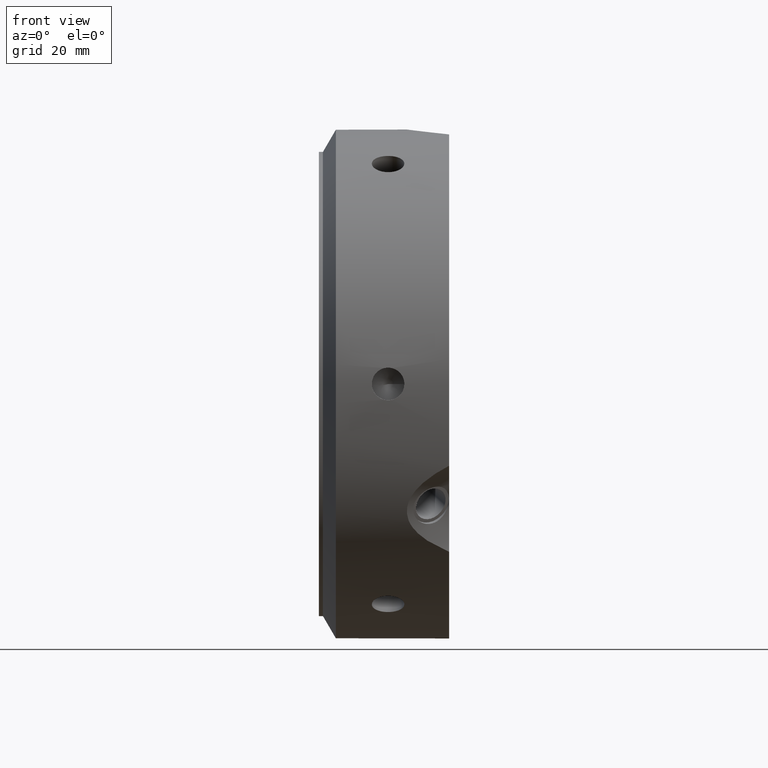
[diagram: clean part render]
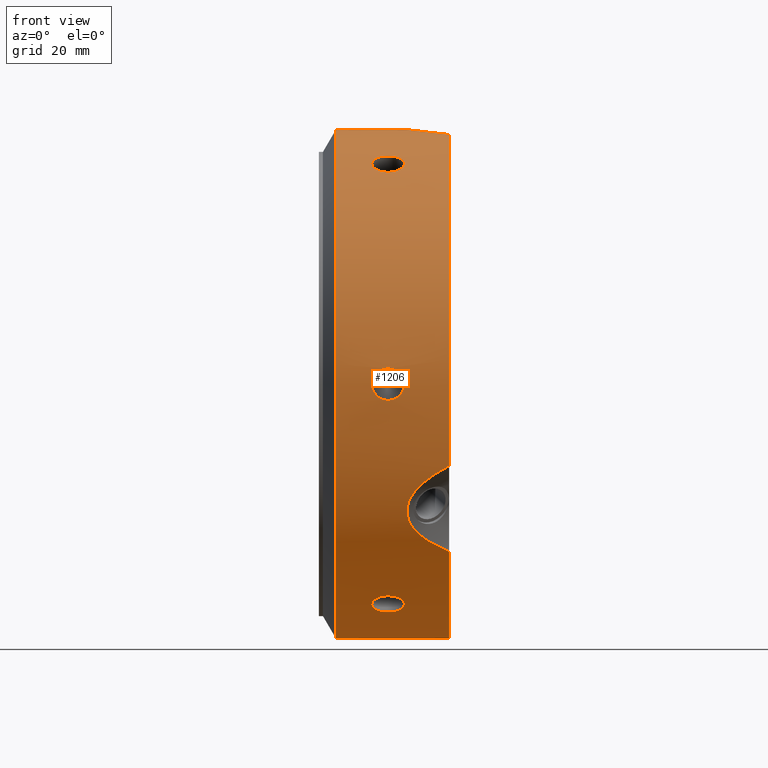
[diagram: same view with one face highlighted and labeled with its STEP entity id]
A machine part, front view. The second image highlights one B-rep face of the part: STEP entity #1206.
In plain terms, the highlighted cylindrical surface (bore or boss wall) has radius 62.5 mm, axis along (1, 0, 0).
Its self-contained STEP definition (entity closure, byte-faithful):
#90=CARTESIAN_POINT('',(12.999999999999975,31.250000000000053,54.126587736527384));
#91=VERTEX_POINT('',#90);
#92=CARTESIAN_POINT('',(20.999999999999979,31.250000000000057,54.126587736527384));
#93=VERTEX_POINT('',#92);
#94=CARTESIAN_POINT('',(12.999999999999975,31.250000000000057,54.126587736527384));
#95=CARTESIAN_POINT('',(12.999999999999975,31.685087773698246,53.875389693261617));
#96=CARTESIAN_POINT('',(13.100432073381826,32.145755520425617,53.601710224485799));
#97=CARTESIAN_POINT('',(13.5086895282219,32.987130454037285,53.088060440923421));
#98=CARTESIAN_POINT('',(13.8165073155632,33.368020003460273,52.848382863856486));
#99=CARTESIAN_POINT('',(14.526638636587311,33.966926850569322,52.465457310002023));
#100=CARTESIAN_POINT('',(14.97633736064137,34.22493602999338,52.29670705123069));
#101=CARTESIAN_POINT('',(15.961814025789714,34.566406575773698,52.071636724532915));
#102=CARTESIAN_POINT('',(16.497603628156,34.650035944575492,52.015622740092482));
#103=CARTESIAN_POINT('',(17.502396371843957,34.650035944575492,52.015622740092482));
#104=CARTESIAN_POINT('',(18.03818597421024,34.566406575773698,52.071636724532922));
#105=CARTESIAN_POINT('',(19.023662639358584,34.22493602999338,52.296707051230698));
#106=CARTESIAN_POINT('',(19.473361363412639,33.966926850569322,52.465457310002009));
#107=CARTESIAN_POINT('',(20.183492684436754,33.368020003460273,52.848382863856472));
#108=CARTESIAN_POINT('',(20.491310471778057,32.987130454037285,53.088060440923421));
#109=CARTESIAN_POINT('',(20.899567926618129,32.14575552042561,53.601710224485799));
#110=CARTESIAN_POINT('',(20.999999999999975,31.685087773698246,53.875389693261617));
#111=CARTESIAN_POINT('',(20.999999999999975,31.250000000000057,54.126587736527384));
#112=B_SPLINE_CURVE_WITH_KNOTS('',3,(#94,#95,#96,#97,#98,#99,#100,#101,#102,#103,#104,#105,#106,#107,#108,#109,#110,#111),.UNSPECIFIED.,.F.,.U.,(4,2,2,2,2,2,2,2,4),(0.602875475025307,0.753594300984766,0.904313126944226,1.055032038497419,1.205750950050613,1.356469861603806,1.507188773156999,1.657907599116459,1.808626425075919),.UNSPECIFIED.);
#113=EDGE_CURVE('',#91,#93,#112,.T.);
#115=CARTESIAN_POINT('',(20.999999999999979,31.250000000000053,54.126587736527377));
#116=CARTESIAN_POINT('',(20.999999999999979,30.814912226301864,54.377785779793143));
#117=CARTESIAN_POINT('',(20.899567926618129,30.347564980484098,54.639896016775268));
#118=CARTESIAN_POINT('',(20.491310471778061,29.482043752464868,55.111723191609236));
#119=CARTESIAN_POINT('',(20.183492684436757,29.084032107295901,55.321744428912076));
#120=CARTESIAN_POINT('',(19.473361363412643,28.452955426345177,55.648950196081728));
#121=CARTESIAN_POINT('',(19.023662639358591,28.177808825641989,55.788017570486886));
#122=CARTESIAN_POINT('',(18.038185974210244,27.812156932193503,55.971204574427901));
#123=CARTESIAN_POINT('',(17.502396371843957,27.721832714299985,56.015622740092482));
#124=CARTESIAN_POINT('',(16.999999999999979,27.721832714299985,56.015622740092482));
#125=CARTESIAN_POINT('',(16.497603628156,27.721832714299985,56.015622740092482));
#126=CARTESIAN_POINT('',(15.961814025789716,27.812156932193499,55.971204574427901));
#127=CARTESIAN_POINT('',(14.976337360641367,28.177808825641986,55.788017570486886));
#128=CARTESIAN_POINT('',(14.526638636587311,28.452955426345177,55.648950196081728));
#129=CARTESIAN_POINT('',(13.8165073155632,29.08403210729589,55.321744428912076));
#130=CARTESIAN_POINT('',(13.508689528221897,29.482043752464865,55.111723191609244));
#131=CARTESIAN_POINT('',(13.100432073381823,30.347564980484091,54.639896016775282));
#132=CARTESIAN_POINT('',(12.999999999999975,30.814912226301871,54.377785779793157));
#133=CARTESIAN_POINT('',(12.999999999999975,31.250000000000057,54.126587736527384));
#134=B_SPLINE_CURVE_WITH_KNOTS('',3,(#115,#116,#117,#118,#119,#120,#121,#122,#123,#124,#125,#126,#127,#128,#129,#130,#131,#132,#133),.UNSPECIFIED.,.F.,.U.,(4,2,2,2,3,2,2,2,4),(1.808626425075919,1.959345251035379,2.110064076994838,2.260782988548032,2.411501900101225,2.562220811654419,2.712939723207613,2.863658549167072,3.014377375126532),.UNSPECIFIED.);
#135=EDGE_CURVE('',#93,#91,#134,.T.);
#202=CARTESIAN_POINT('',(12.999999999999975,62.5,-4.163336E-014));
#203=VERTEX_POINT('',#202);
#204=CARTESIAN_POINT('',(20.999999999999979,62.5,-4.440892E-014));
#205=VERTEX_POINT('',#204);
#206=CARTESIAN_POINT('',(12.999999999999975,62.5,-4.579670E-014));
#207=CARTESIAN_POINT('',(12.999999999999975,62.5,-0.502396086531579));
#208=CARTESIAN_POINT('',(13.100432073381823,62.49332050090959,-1.03818579228952));
#209=CARTESIAN_POINT('',(13.508689528221893,62.469174206502032,-2.023662750685858));
#210=CARTESIAN_POINT('',(13.8165073155632,62.452052110756057,-2.473361565055648));
#211=CARTESIAN_POINT('',(14.526638636587311,62.419882276914379,-3.183492886079761));
#212=CARTESIAN_POINT('',(14.976337360641365,62.402744855635248,-3.491310519256232));
#213=CARTESIAN_POINT('',(15.961814025789709,62.37856350796708,-3.899567849895008));
#214=CARTESIAN_POINT('',(16.497603628156,62.371868658875371,-4.000000000000046));
#215=CARTESIAN_POINT('',(17.502396371843957,62.371868658875371,-4.000000000000046));
#216=CARTESIAN_POINT('',(18.038185974210247,62.37856350796708,-3.899567849895008));
#217=CARTESIAN_POINT('',(19.023662639358591,62.402744855635248,-3.491310519256232));
#218=CARTESIAN_POINT('',(19.473361363412643,62.419882276914379,-3.183492886079761));
#219=CARTESIAN_POINT('',(20.183492684436754,62.452052110756057,-2.473361565055648));
#220=CARTESIAN_POINT('',(20.491310471778061,62.469174206502032,-2.023662750685858));
#221=CARTESIAN_POINT('',(20.899567926618129,62.49332050090959,-1.038185792289522));
#222=CARTESIAN_POINT('',(20.999999999999975,62.5,-0.50239608653158));
#223=CARTESIAN_POINT('',(20.999999999999975,62.5,-4.718448E-014));
#224=B_SPLINE_CURVE_WITH_KNOTS('',3,(#206,#207,#208,#209,#210,#211,#212,#213,#214,#215,#216,#217,#218,#219,#220,#221,#222,#223),.UNSPECIFIED.,.F.,.U.,(4,2,2,2,2,2,2,2,4),(0.602875475025306,0.753594300984766,0.904313126944226,1.055032038497419,1.205750950050613,1.356469861603806,1.507188773156999,1.657907599116459,1.808626425075919),.UNSPECIFIED.);
#225=EDGE_CURVE('',#203,#205,#224,.T.);
#227=CARTESIAN_POINT('',(20.999999999999975,62.5,-4.704570E-014));
#228=CARTESIAN_POINT('',(20.999999999999975,62.5,0.502396086531486));
#229=CARTESIAN_POINT('',(20.899567926618129,62.49332050090959,1.038185792289428));
#230=CARTESIAN_POINT('',(20.491310471778061,62.469174206502032,2.023662750685766));
#231=CARTESIAN_POINT('',(20.183492684436754,62.452052110756057,2.473361565055556));
#232=CARTESIAN_POINT('',(19.473361363412643,62.419882276914379,3.183492886079669));
#233=CARTESIAN_POINT('',(19.023662639358591,62.402744855635248,3.491310519256141));
#234=CARTESIAN_POINT('',(18.038185974210247,62.37856350796708,3.899567849894916));
#235=CARTESIAN_POINT('',(17.502396371843957,62.371868658875371,3.999999999999954));
#236=CARTESIAN_POINT('',(16.999999999999979,62.371868658875371,3.999999999999954));
#237=CARTESIAN_POINT('',(16.497603628156,62.371868658875371,3.999999999999954));
#238=CARTESIAN_POINT('',(15.961814025789709,62.37856350796708,3.899567849894916));
#239=CARTESIAN_POINT('',(14.976337360641365,62.402744855635248,3.491310519256141));
#240=CARTESIAN_POINT('',(14.526638636587311,62.419882276914379,3.183492886079669));
#241=CARTESIAN_POINT('',(13.8165073155632,62.452052110756057,2.473361565055557));
#242=CARTESIAN_POINT('',(13.508689528221897,62.469174206502032,2.023662750685768));
#243=CARTESIAN_POINT('',(13.100432073381825,62.49332050090959,1.03818579228943));
#244=CARTESIAN_POINT('',(12.999999999999975,62.5,0.502396086531487));
#245=CARTESIAN_POINT('',(12.999999999999975,62.5,-4.579670E-014));
#246=B_SPLINE_CURVE_WITH_KNOTS('',3,(#227,#228,#229,#230,#231,#232,#233,#234,#235,#236,#237,#238,#239,#240,#241,#242,#243,#244,#245),.UNSPECIFIED.,.F.,.U.,(4,2,2,2,3,2,2,2,4),(1.808626425075919,1.959345251035379,2.110064076994838,2.260782988548032,2.411501900101225,2.562220811654418,2.712939723207612,2.863658549167071,3.014377375126531),.UNSPECIFIED.);
#247=EDGE_CURVE('',#205,#203,#246,.T.);
#314=CARTESIAN_POINT('',(12.999999999999975,31.249999999999979,-54.126587736527426));
#315=VERTEX_POINT('',#314);
#316=CARTESIAN_POINT('',(20.999999999999979,31.249999999999979,-54.126587736527426));
#317=VERTEX_POINT('',#316);
#318=CARTESIAN_POINT('',(12.999999999999979,31.249999999999982,-54.126587736527426));
#319=CARTESIAN_POINT('',(12.999999999999979,30.814912226301789,-54.377785779793193));
#320=CARTESIAN_POINT('',(13.100432073381826,30.34756498048402,-54.639896016775317));
#321=CARTESIAN_POINT('',(13.5086895282219,29.482043752464794,-55.111723191609279));
#322=CARTESIAN_POINT('',(13.8165073155632,29.084032107295819,-55.321744428912126));
#323=CARTESIAN_POINT('',(14.526638636587313,28.452955426345106,-55.648950196081785));
#324=CARTESIAN_POINT('',(14.976337360641372,28.177808825641915,-55.788017570486929));
#325=CARTESIAN_POINT('',(15.961814025789714,27.812156932193428,-55.971204574427929));
#326=CARTESIAN_POINT('',(16.497603628156,27.721832714299921,-56.015622740092525));
#327=CARTESIAN_POINT('',(17.502396371843957,27.721832714299921,-56.015622740092525));
#328=CARTESIAN_POINT('',(18.038185974210251,27.812156932193428,-55.971204574427922));
#329=CARTESIAN_POINT('',(19.023662639358591,28.177808825641915,-55.788017570486915));
#330=CARTESIAN_POINT('',(19.473361363412643,28.452955426345113,-55.648950196081763));
#331=CARTESIAN_POINT('',(20.183492684436754,29.08403210729583,-55.321744428912119));
#332=CARTESIAN_POINT('',(20.491310471778061,29.482043752464797,-55.111723191609279));
#333=CARTESIAN_POINT('',(20.899567926618129,30.347564980484023,-54.639896016775317));
#334=CARTESIAN_POINT('',(20.999999999999975,30.814912226301789,-54.377785779793186));
#335=CARTESIAN_POINT('',(20.999999999999975,31.249999999999982,-54.126587736527426));
#336=B_SPLINE_CURVE_WITH_KNOTS('',3,(#318,#319,#320,#321,#322,#323,#324,#325,#326,#327,#328,#329,#330,#331,#332,#333,#334,#335),.UNSPECIFIED.,.F.,.U.,(4,2,2,2,2,2,2,2,4),(0.602875475025307,0.753594300984767,0.904313126944227,1.05503203849742,1.205750950050613,1.356469861603806,1.507188773157,1.657907599116459,1.808626425075918),.UNSPECIFIED.);
#337=EDGE_CURVE('',#315,#317,#336,.T.);
#339=CARTESIAN_POINT('',(20.999999999999979,31.249999999999982,-54.126587736527426));
#340=CARTESIAN_POINT('',(20.999999999999979,31.685087773698175,-53.875389693261653));
#341=CARTESIAN_POINT('',(20.899567926618129,32.145755520425539,-53.601710224485835));
#342=CARTESIAN_POINT('',(20.491310471778061,32.987130454037207,-53.088060440923456));
#343=CARTESIAN_POINT('',(20.183492684436757,33.368020003460202,-52.848382863856514));
#344=CARTESIAN_POINT('',(19.473361363412643,33.966926850569259,-52.465457310002051));
#345=CARTESIAN_POINT('',(19.023662639358584,34.224936029993309,-52.296707051230733));
#346=CARTESIAN_POINT('',(18.03818597421024,34.566406575773627,-52.071636724532965));
#347=CARTESIAN_POINT('',(17.502396371843957,34.650035944575428,-52.015622740092525));
#348=CARTESIAN_POINT('',(16.999999999999979,34.650035944575428,-52.015622740092525));
#349=CARTESIAN_POINT('',(16.497603628156,34.650035944575428,-52.015622740092525));
#350=CARTESIAN_POINT('',(15.961814025789714,34.566406575773627,-52.071636724532965));
#351=CARTESIAN_POINT('',(14.97633736064137,34.224936029993309,-52.296707051230733));
#352=CARTESIAN_POINT('',(14.526638636587311,33.966926850569259,-52.465457310002051));
#353=CARTESIAN_POINT('',(13.816507315563198,33.368020003460202,-52.848382863856514));
#354=CARTESIAN_POINT('',(13.508689528221893,32.987130454037207,-53.088060440923456));
#355=CARTESIAN_POINT('',(13.100432073381823,32.145755520425531,-53.601710224485835));
#356=CARTESIAN_POINT('',(12.999999999999979,31.685087773698179,-53.875389693261646));
#357=CARTESIAN_POINT('',(12.999999999999979,31.249999999999986,-54.126587736527412));
#358=B_SPLINE_CURVE_WITH_KNOTS('',3,(#339,#340,#341,#342,#343,#344,#345,#346,#347,#348,#349,#350,#351,#352,#353,#354,#355,#356,#357),.UNSPECIFIED.,.F.,.U.,(4,2,2,2,3,2,2,2,4),(1.808626425075918,1.959345251035379,2.110064076994839,2.260782988548032,2.411501900101225,2.562220811654419,2.712939723207612,2.863658549167072,3.014377375126533),.UNSPECIFIED.);
#359=EDGE_CURVE('',#317,#315,#358,.T.);
#426=CARTESIAN_POINT('',(12.999999999999975,-31.250000000000021,-54.126587736527405));
#427=VERTEX_POINT('',#426);
#428=CARTESIAN_POINT('',(20.999999999999979,-31.250000000000028,-54.126587736527405));
#429=VERTEX_POINT('',#428);
#430=CARTESIAN_POINT('',(12.999999999999979,-31.250000000000028,-54.126587736527405));
#431=CARTESIAN_POINT('',(12.999999999999979,-31.685087773698221,-53.875389693261639));
#432=CARTESIAN_POINT('',(13.100432073381825,-32.145755520425581,-53.601710224485814));
#433=CARTESIAN_POINT('',(13.508689528221893,-32.987130454037242,-53.088060440923435));
#434=CARTESIAN_POINT('',(13.8165073155632,-33.368020003460238,-52.8483828638565));
#435=CARTESIAN_POINT('',(14.526638636587313,-33.966926850569287,-52.465457310002037));
#436=CARTESIAN_POINT('',(14.976337360641367,-34.224936029993337,-52.296707051230712));
#437=CARTESIAN_POINT('',(15.961814025789714,-34.566406575773655,-52.071636724532944));
#438=CARTESIAN_POINT('',(16.497603628156,-34.650035944575464,-52.015622740092496));
#439=CARTESIAN_POINT('',(17.502396371843954,-34.650035944575464,-52.015622740092496));
#440=CARTESIAN_POINT('',(18.03818597421024,-34.566406575773655,-52.071636724532944));
#441=CARTESIAN_POINT('',(19.023662639358584,-34.224936029993337,-52.296707051230712));
#442=CARTESIAN_POINT('',(19.473361363412639,-33.966926850569294,-52.465457310002037));
#443=CARTESIAN_POINT('',(20.18349268443675,-33.368020003460245,-52.8483828638565));
#444=CARTESIAN_POINT('',(20.491310471778057,-32.987130454037242,-53.088060440923435));
#445=CARTESIAN_POINT('',(20.899567926618129,-32.145755520425574,-53.601710224485821));
#446=CARTESIAN_POINT('',(20.999999999999975,-31.685087773698214,-53.875389693261639));
#447=CARTESIAN_POINT('',(20.999999999999975,-31.250000000000021,-54.126587736527405));
#448=B_SPLINE_CURVE_WITH_KNOTS('',3,(#430,#431,#432,#433,#434,#435,#436,#437,#438,#439,#440,#441,#442,#443,#444,#445,#446,#447),.UNSPECIFIED.,.F.,.U.,(4,2,2,2,2,2,2,2,4),(0.602875475025306,0.753594300984766,0.904313126944226,1.055032038497419,1.205750950050613,1.356469861603806,1.507188773156999,1.657907599116459,1.808626425075919),.UNSPECIFIED.);
#449=EDGE_CURVE('',#427,#429,#448,.T.);
#451=CARTESIAN_POINT('',(20.999999999999979,-31.250000000000021,-54.126587736527405));
#452=CARTESIAN_POINT('',(20.999999999999979,-30.814912226301828,-54.377785779793172));
#453=CARTESIAN_POINT('',(20.899567926618133,-30.347564980484059,-54.639896016775289));
#454=CARTESIAN_POINT('',(20.491310471778064,-29.482043752464833,-55.111723191609258));
#455=CARTESIAN_POINT('',(20.183492684436757,-29.084032107295865,-55.321744428912112));
#456=CARTESIAN_POINT('',(19.473361363412643,-28.452955426345152,-55.648950196081742));
#457=CARTESIAN_POINT('',(19.023662639358591,-28.17780882564195,-55.788017570486907));
#458=CARTESIAN_POINT('',(18.038185974210244,-27.812156932193464,-55.971204574427915));
#459=CARTESIAN_POINT('',(17.502396371843957,-27.72183271429995,-56.015622740092503));
#460=CARTESIAN_POINT('',(16.999999999999979,-27.721832714299953,-56.015622740092503));
#461=CARTESIAN_POINT('',(16.497603628156,-27.721832714299953,-56.015622740092503));
#462=CARTESIAN_POINT('',(15.961814025789709,-27.812156932193464,-55.971204574427915));
#463=CARTESIAN_POINT('',(14.976337360641365,-28.17780882564195,-55.788017570486907));
#464=CARTESIAN_POINT('',(14.526638636587311,-28.452955426345152,-55.648950196081756));
#465=CARTESIAN_POINT('',(13.8165073155632,-29.084032107295865,-55.321744428912112));
#466=CARTESIAN_POINT('',(13.508689528221893,-29.482043752464833,-55.111723191609272));
#467=CARTESIAN_POINT('',(13.100432073381823,-30.347564980484062,-54.63989601677531));
#468=CARTESIAN_POINT('',(12.999999999999975,-30.814912226301828,-54.377785779793172));
#469=CARTESIAN_POINT('',(12.999999999999975,-31.250000000000021,-54.126587736527405));
#470=B_SPLINE_CURVE_WITH_KNOTS('',3,(#451,#452,#453,#454,#455,#456,#457,#458,#459,#460,#461,#462,#463,#464,#465,#466,#467,#468,#469),.UNSPECIFIED.,.F.,.U.,(4,2,2,2,3,2,2,2,4),(1.808626425075919,1.959345251035379,2.110064076994838,2.260782988548032,2.411501900101225,2.562220811654419,2.712939723207613,2.863658549167072,3.014377375126532),.UNSPECIFIED.);
#471=EDGE_CURVE('',#429,#427,#470,.T.);
#538=CARTESIAN_POINT('',(12.999999999999975,-62.5,1.734723E-014));
#539=VERTEX_POINT('',#538);
#540=CARTESIAN_POINT('',(20.999999999999979,-62.5,2.220446E-014));
#541=VERTEX_POINT('',#540);
#542=CARTESIAN_POINT('',(12.999999999999975,-62.5,1.804112E-014));
#543=CARTESIAN_POINT('',(12.999999999999975,-62.5,0.502396086531551));
#544=CARTESIAN_POINT('',(13.100432073381823,-62.49332050090959,1.038185792289492));
#545=CARTESIAN_POINT('',(13.508689528221893,-62.469174206502032,2.02366275068583));
#546=CARTESIAN_POINT('',(13.8165073155632,-62.452052110756057,2.47336156505562));
#547=CARTESIAN_POINT('',(14.526638636587311,-62.419882276914379,3.183492886079733));
#548=CARTESIAN_POINT('',(14.97633736064137,-62.402744855635248,3.491310519256206));
#549=CARTESIAN_POINT('',(15.961814025789714,-62.37856350796708,3.899567849894981));
#550=CARTESIAN_POINT('',(16.497603628156,-62.371868658875371,4.000000000000019));
#551=CARTESIAN_POINT('',(17.502396371843957,-62.371868658875371,4.000000000000019));
#552=CARTESIAN_POINT('',(18.038185974210247,-62.37856350796708,3.89956784989498));
#553=CARTESIAN_POINT('',(19.023662639358591,-62.402744855635248,3.491310519256205));
#554=CARTESIAN_POINT('',(19.473361363412643,-62.419882276914379,3.183492886079732));
#555=CARTESIAN_POINT('',(20.183492684436754,-62.452052110756057,2.47336156505562));
#556=CARTESIAN_POINT('',(20.491310471778061,-62.469174206502032,2.02366275068583));
#557=CARTESIAN_POINT('',(20.899567926618129,-62.49332050090959,1.038185792289494));
#558=CARTESIAN_POINT('',(20.999999999999975,-62.5,0.502396086531552));
#559=CARTESIAN_POINT('',(20.999999999999975,-62.5,1.942890E-014));
#560=B_SPLINE_CURVE_WITH_KNOTS('',3,(#542,#543,#544,#545,#546,#547,#548,#549,#550,#551,#552,#553,#554,#555,#556,#557,#558,#559),.UNSPECIFIED.,.F.,.U.,(4,2,2,2,2,2,2,2,4),(0.602875475025306,0.753594300984766,0.904313126944226,1.05503203849742,1.205750950050613,1.356469861603806,1.507188773157,1.657907599116459,1.808626425075919),.UNSPECIFIED.);
#561=EDGE_CURVE('',#539,#541,#560,.T.);
#563=CARTESIAN_POINT('',(20.999999999999975,-62.5,1.929013E-014));
#564=CARTESIAN_POINT('',(20.999999999999975,-62.5,-0.502396086531514));
#565=CARTESIAN_POINT('',(20.899567926618129,-62.49332050090959,-1.038185792289456));
#566=CARTESIAN_POINT('',(20.491310471778061,-62.469174206502032,-2.023662750685793));
#567=CARTESIAN_POINT('',(20.183492684436754,-62.452052110756057,-2.473361565055584));
#568=CARTESIAN_POINT('',(19.473361363412643,-62.419882276914379,-3.183492886079696));
#569=CARTESIAN_POINT('',(19.023662639358591,-62.402744855635248,-3.491310519256168));
#570=CARTESIAN_POINT('',(18.038185974210247,-62.37856350796708,-3.899567849894944));
#571=CARTESIAN_POINT('',(17.502396371843957,-62.371868658875371,-3.999999999999982));
#572=CARTESIAN_POINT('',(16.999999999999979,-62.371868658875371,-3.999999999999982));
#573=CARTESIAN_POINT('',(16.497603628156,-62.371868658875371,-3.999999999999982));
#574=CARTESIAN_POINT('',(15.961814025789714,-62.37856350796708,-3.899567849894945));
#575=CARTESIAN_POINT('',(14.97633736064137,-62.402744855635248,-3.49131051925617));
#576=CARTESIAN_POINT('',(14.526638636587311,-62.419882276914379,-3.183492886079697));
#577=CARTESIAN_POINT('',(13.8165073155632,-62.452052110756057,-2.473361565055585));
#578=CARTESIAN_POINT('',(13.508689528221897,-62.469174206502032,-2.023662750685795));
#579=CARTESIAN_POINT('',(13.100432073381825,-62.49332050090959,-1.038185792289457));
#580=CARTESIAN_POINT('',(12.999999999999975,-62.5,-0.502396086531515));
#581=CARTESIAN_POINT('',(12.999999999999975,-62.5,1.817990E-014));
#582=B_SPLINE_CURVE_WITH_KNOTS('',3,(#563,#564,#565,#566,#567,#568,#569,#570,#571,#572,#573,#574,#575,#576,#577,#578,#579,#580,#581),.UNSPECIFIED.,.F.,.U.,(4,2,2,2,3,2,2,2,4),(1.808626425075919,1.959345251035379,2.110064076994839,2.260782988548032,2.411501900101225,2.562220811654419,2.712939723207612,2.863658549167072,3.014377375126532),.UNSPECIFIED.);
#583=EDGE_CURVE('',#541,#539,#582,.T.);
#687=CARTESIAN_POINT('',(12.999999999999975,-31.249999999999993,54.126587736527426));
#688=VERTEX_POINT('',#687);
#689=CARTESIAN_POINT('',(20.999999999999979,-31.249999999999986,54.126587736527426));
#690=VERTEX_POINT('',#689);
#691=CARTESIAN_POINT('',(12.999999999999979,-31.249999999999993,54.126587736527426));
#692=CARTESIAN_POINT('',(12.999999999999979,-30.8149122263018,54.377785779793193));
#693=CARTESIAN_POINT('',(13.100432073381821,-30.347564980484027,54.63989601677531));
#694=CARTESIAN_POINT('',(13.508689528221892,-29.482043752464797,55.111723191609272));
#695=CARTESIAN_POINT('',(13.8165073155632,-29.08403210729583,55.321744428912119));
#696=CARTESIAN_POINT('',(14.526638636587311,-28.452955426345106,55.648950196081763));
#697=CARTESIAN_POINT('',(14.97633736064137,-28.177808825641915,55.788017570486929));
#698=CARTESIAN_POINT('',(15.961814025789714,-27.812156932193428,55.971204574427929));
#699=CARTESIAN_POINT('',(16.497603628156,-27.721832714299918,56.015622740092525));
#700=CARTESIAN_POINT('',(17.502396371843957,-27.721832714299921,56.015622740092525));
#701=CARTESIAN_POINT('',(18.038185974210247,-27.812156932193432,55.971204574427929));
#702=CARTESIAN_POINT('',(19.023662639358587,-28.177808825641918,55.788017570486929));
#703=CARTESIAN_POINT('',(19.473361363412643,-28.452955426345113,55.648950196081763));
#704=CARTESIAN_POINT('',(20.183492684436754,-29.08403210729583,55.321744428912119));
#705=CARTESIAN_POINT('',(20.491310471778061,-29.482043752464797,55.111723191609286));
#706=CARTESIAN_POINT('',(20.899567926618129,-30.347564980484023,54.639896016775324));
#707=CARTESIAN_POINT('',(20.999999999999979,-30.814912226301793,54.377785779793193));
#708=CARTESIAN_POINT('',(20.999999999999979,-31.249999999999986,54.126587736527426));
#709=B_SPLINE_CURVE_WITH_KNOTS('',3,(#691,#692,#693,#694,#695,#696,#697,#698,#699,#700,#701,#702,#703,#704,#705,#706,#707,#708),.UNSPECIFIED.,.F.,.U.,(4,2,2,2,2,2,2,2,4),(0.602875475025307,0.753594300984766,0.904313126944226,1.05503203849742,1.205750950050613,1.356469861603806,1.507188773157,1.657907599116459,1.808626425075919),.UNSPECIFIED.);
#710=EDGE_CURVE('',#688,#690,#709,.T.);
#712=CARTESIAN_POINT('',(20.999999999999975,-31.249999999999993,54.126587736527426));
#713=CARTESIAN_POINT('',(20.999999999999975,-31.685087773698186,53.875389693261653));
#714=CARTESIAN_POINT('',(20.899567926618133,-32.145755520425546,53.601710224485835));
#715=CARTESIAN_POINT('',(20.491310471778064,-32.987130454037214,53.088060440923464));
#716=CARTESIAN_POINT('',(20.183492684436757,-33.368020003460202,52.848382863856514));
#717=CARTESIAN_POINT('',(19.473361363412643,-33.966926850569251,52.465457310002051));
#718=CARTESIAN_POINT('',(19.023662639358591,-34.224936029993309,52.296707051230733));
#719=CARTESIAN_POINT('',(18.038185974210247,-34.566406575773627,52.071636724532965));
#720=CARTESIAN_POINT('',(17.502396371843957,-34.650035944575428,52.015622740092525));
#721=CARTESIAN_POINT('',(16.999999999999979,-34.650035944575428,52.015622740092525));
#722=CARTESIAN_POINT('',(16.497603628156,-34.650035944575428,52.015622740092525));
#723=CARTESIAN_POINT('',(15.961814025789714,-34.566406575773627,52.071636724532965));
#724=CARTESIAN_POINT('',(14.97633736064137,-34.224936029993309,52.296707051230733));
#725=CARTESIAN_POINT('',(14.526638636587311,-33.966926850569259,52.465457310002051));
#726=CARTESIAN_POINT('',(13.816507315563198,-33.368020003460209,52.848382863856514));
#727=CARTESIAN_POINT('',(13.508689528221893,-32.987130454037214,53.088060440923464));
#728=CARTESIAN_POINT('',(13.100432073381823,-32.145755520425546,53.601710224485842));
#729=CARTESIAN_POINT('',(12.999999999999979,-31.685087773698189,53.875389693261646));
#730=CARTESIAN_POINT('',(12.999999999999979,-31.249999999999996,54.126587736527412));
#731=B_SPLINE_CURVE_WITH_KNOTS('',3,(#712,#713,#714,#715,#716,#717,#718,#719,#720,#721,#722,#723,#724,#725,#726,#727,#728,#729,#730),.UNSPECIFIED.,.F.,.U.,(4,2,2,2,3,2,2,2,4),(1.808626425075919,1.959345251035379,2.110064076994838,2.260782988548032,2.411501900101225,2.562220811654418,2.712939723207612,2.863658549167071,3.014377375126532),.UNSPECIFIED.);
#732=EDGE_CURVE('',#690,#688,#731,.T.);
#747=CARTESIAN_POINT('',(31.999999999999986,59.186412670163989,-20.080302667964212));
#748=VERTEX_POINT('',#747);
#796=CARTESIAN_POINT('',(31.999999999999989,46.983258561219401,-41.216785597249142));
#797=VERTEX_POINT('',#796);
#805=CARTESIAN_POINT('',(31.999999999999979,59.186412670164003,-20.080302667964204));
#806=CARTESIAN_POINT('',(30.664839463063945,58.954387797049264,-20.764192752540474));
#807=CARTESIAN_POINT('',(29.389425953236874,58.692272517044813,-21.498734613729184));
#808=CARTESIAN_POINT('',(26.554914302788358,57.968305297610058,-23.394622902583091));
#809=CARTESIAN_POINT('',(24.885301721691327,57.417497475550441,-24.744847389249145));
#810=CARTESIAN_POINT('',(23.027148686384812,56.357505955729593,-27.033093843150336));
#811=CARTESIAN_POINT('',(22.514416749918208,55.964939215861193,-27.839896546009971));
#812=CARTESIAN_POINT('',(21.804501483200784,55.102059544849745,-29.510969064617335));
#813=CARTESIAN_POINT('',(21.607695154586754,54.631586565001413,-30.375316371320281));
#814=CARTESIAN_POINT('',(21.60769515458675,53.621588908053397,-32.124683628679769));
#815=CARTESIAN_POINT('',(21.804501483200806,53.108278672680157,-32.964298834374056));
#816=CARTESIAN_POINT('',(22.514416749918226,52.092527255505857,-34.547110809182811));
#817=CARTESIAN_POINT('',(23.027148686384812,51.590098988921653,-35.29048493001951));
#818=CARTESIAN_POINT('',(24.885301721691334,50.138415189633989,-37.352587740931035));
#819=CARTESIAN_POINT('',(26.554914302788362,49.244490394399172,-38.504713550770859));
#820=CARTESIAN_POINT('',(29.389425953236884,47.964586583231664,-40.079631698735497));
#821=CARTESIAN_POINT('',(30.664839463063949,47.45951231130136,-40.673901120533777));
#822=CARTESIAN_POINT('',(31.999999999999986,46.983258561219394,-41.216785597249135));
#823=B_SPLINE_CURVE_WITH_KNOTS('',3,(#805,#806,#807,#808,#809,#810,#811,#812,#813,#814,#815,#816,#817,#818,#819,#820,#821,#822),.UNSPECIFIED.,.F.,.U.,(4,2,2,2,2,2,2,2,4),(2.376565189463518,2.8164002107251,3.422398804893912,3.725398101978318,4.028397399062723,4.331396696147129,4.634395993231536,5.240394587400347,5.68022960866193),.UNSPECIFIED.);
#824=EDGE_CURVE('',#748,#797,#823,.T.);
#933=CARTESIAN_POINT('',(31.999999999999986,-46.983258561219429,-41.216785597249121));
#934=VERTEX_POINT('',#933);
#982=CARTESIAN_POINT('',(31.999999999999986,-59.186412670164032,-20.080302667964148));
#983=VERTEX_POINT('',#982);
#991=CARTESIAN_POINT('',(31.999999999999986,-46.983258561219415,-41.216785597249114));
#992=CARTESIAN_POINT('',(30.601411015312205,-47.482137332988273,-40.648110724012902));
#993=CARTESIAN_POINT('',(29.268340309508222,-48.012583235901765,-40.023167325727201));
#994=CARTESIAN_POINT('',(26.423768434298101,-49.313465945771682,-38.416048342990564));
#995=CARTESIAN_POINT('',(24.794616525335655,-50.196968125257925,-37.272999981403686));
#996=CARTESIAN_POINT('',(22.985244146828805,-51.629436843124722,-35.232680933835645));
#997=CARTESIAN_POINT('',(22.486747935300684,-52.124915630844527,-34.497872258528695));
#998=CARTESIAN_POINT('',(21.797753926030047,-53.125499370825111,-32.936170642489159));
#999=CARTESIAN_POINT('',(21.607695154586768,-53.630597758231332,-32.109079842453781));
#1000=CARTESIAN_POINT('',(21.607695154586768,-54.622577714823493,-30.390920157546205));
#1001=CARTESIAN_POINT('',(21.797753926030047,-55.086310165187413,-29.539946722624162));
#1002=CARTESIAN_POINT('',(22.486747935300684,-55.938491567818573,-27.892564977167559));
#1003=CARTESIAN_POINT('',(22.985244146828769,-56.327115153695708,-27.096063422312415));
#1004=CARTESIAN_POINT('',(24.794616525335616,-57.377848921781492,-24.835349598729216));
#1005=CARTESIAN_POINT('',(26.423768434298101,-57.92600675092676,-23.49869008620179));
#1006=CARTESIAN_POINT('',(29.268340309508226,-58.667371261945945,-21.568533120742181));
#1007=CARTESIAN_POINT('',(30.601411015312205,-58.943365169331983,-20.796681794342867));
#1008=CARTESIAN_POINT('',(31.999999999999989,-59.18641267016401,-20.080302667964155));
#1009=B_SPLINE_CURVE_WITH_KNOTS('',3,(#991,#992,#993,#994,#995,#996,#997,#998,#999,#1000,#1001,#1002,#1003,#1004,#1005,#1006,#1007,#1008),.UNSPECIFIED.,.F.,.U.,(4,2,2,2,2,2,2,2,4),(2.306237719438578,2.766040018541415,3.361227992496706,3.658821979474351,3.956415966451996,4.254009953429642,4.551603940407287,5.146791914362578,5.606594213465418),.UNSPECIFIED.);
#1010=EDGE_CURVE('',#934,#983,#1009,.T.);
#1112=CARTESIAN_POINT('',(18.087713240271448,0.0,0.0));
#1113=DIRECTION('',(1.0,0.0,0.0));
#1114=DIRECTION('',(0.0,1.0,0.0));
#1115=AXIS2_PLACEMENT_3D('',#1112,#1113,#1114);
#1116=CYLINDRICAL_SURFACE('',#1115,62.5);
#1117=CARTESIAN_POINT('',(4.175426480542916,62.5,0.0));
#1118=VERTEX_POINT('',#1117);
#1119=CARTESIAN_POINT('',(4.175426480542916,0.0,0.0));
#1120=DIRECTION('',(1.0,0.0,0.0));
#1121=DIRECTION('',(0.0,1.0,0.0));
#1122=AXIS2_PLACEMENT_3D('',#1119,#1120,#1121);
#1123=CIRCLE('',#1122,62.5);
#1124=EDGE_CURVE('',#1118,#1118,#1123,.T.);
#1125=ORIENTED_EDGE('',*,*,#1124,.T.);
#1126=EDGE_LOOP('',(#1125));
#1127=FACE_OUTER_BOUND('',#1126,.T.);
#1128=ORIENTED_EDGE('',*,*,#113,.T.);
#1129=ORIENTED_EDGE('',*,*,#135,.T.);
#1130=EDGE_LOOP('',(#1128,#1129));
#1131=FACE_BOUND('',#1130,.T.);
#1132=ORIENTED_EDGE('',*,*,#225,.T.);
#1133=ORIENTED_EDGE('',*,*,#247,.T.);
#1134=EDGE_LOOP('',(#1132,#1133));
#1135=FACE_BOUND('',#1134,.T.);
#1136=ORIENTED_EDGE('',*,*,#337,.T.);
#1137=ORIENTED_EDGE('',*,*,#359,.T.);
#1138=EDGE_LOOP('',(#1136,#1137));
#1139=FACE_BOUND('',#1138,.T.);
#1140=ORIENTED_EDGE('',*,*,#449,.T.);
#1141=ORIENTED_EDGE('',*,*,#471,.T.);
#1142=EDGE_LOOP('',(#1140,#1141));
#1143=FACE_BOUND('',#1142,.T.);
#1144=ORIENTED_EDGE('',*,*,#561,.T.);
#1145=ORIENTED_EDGE('',*,*,#583,.T.);
#1146=EDGE_LOOP('',(#1144,#1145));
#1147=FACE_BOUND('',#1146,.T.);
#1148=ORIENTED_EDGE('',*,*,#710,.T.);
#1149=ORIENTED_EDGE('',*,*,#732,.T.);
#1150=EDGE_LOOP('',(#1148,#1149));
#1151=FACE_BOUND('',#1150,.T.);
#1152=ORIENTED_EDGE('',*,*,#824,.T.);
#1153=CARTESIAN_POINT('',(31.999999999999986,0.0,0.0));
#1154=DIRECTION('',(1.0,0.0,0.0));
#1155=DIRECTION('',(0.0,1.0,0.0));
#1156=AXIS2_PLACEMENT_3D('',#1153,#1154,#1155);
#1157=CIRCLE('',#1156,62.5);
#1158=EDGE_CURVE('',#934,#797,#1157,.T.);
#1159=ORIENTED_EDGE('',*,*,#1158,.F.);
#1160=ORIENTED_EDGE('',*,*,#1010,.T.);
#1161=CARTESIAN_POINT('',(31.999999999999986,-12.203154108944601,61.29708826521329));
#1162=VERTEX_POINT('',#1161);
#1163=CARTESIAN_POINT('',(31.999999999999986,0.0,0.0));
#1164=DIRECTION('',(1.0,0.0,0.0));
#1165=DIRECTION('',(0.0,1.0,0.0));
#1166=AXIS2_PLACEMENT_3D('',#1163,#1164,#1165);
#1167=CIRCLE('',#1166,62.5);
#1168=EDGE_CURVE('',#1162,#983,#1167,.T.);
#1169=ORIENTED_EDGE('',*,*,#1168,.F.);
#1170=CARTESIAN_POINT('',(31.999999999999986,12.203154108944601,61.29708826521329));
#1171=VERTEX_POINT('',#1170);
#1172=CARTESIAN_POINT('',(31.999999999999986,-12.203154108944599,61.29708826521329));
#1173=CARTESIAN_POINT('',(31.431913915169897,-11.901794670218212,61.357083540307784));
#1174=CARTESIAN_POINT('',(30.874038050902431,-11.589217624802313,61.417007322446963));
#1175=CARTESIAN_POINT('',(28.771640161183086,-10.3382953325955,61.646224214042931));
#1176=CARTESIAN_POINT('',(27.31667494673151,-9.317887255007284,61.812273314517306));
#1177=CARTESIAN_POINT('',(24.880220178276463,-7.150565182407545,62.098196806849927));
#1178=CARTESIAN_POINT('',(23.73762238417488,-5.901925762092457,62.236520992236287));
#1179=CARTESIAN_POINT('',(22.505251048617918,-3.803483021498018,62.388102712756151));
#1180=CARTESIAN_POINT('',(22.173374603993526,-3.065800972462363,62.429363984567161));
#1181=CARTESIAN_POINT('',(21.724325669203189,-1.550757243415833,62.485356485997919));
#1182=CARTESIAN_POINT('',(21.60769515458675,-0.773231737841583,62.5));
#1183=CARTESIAN_POINT('',(21.60769515458675,0.773231737841583,62.5));
#1184=CARTESIAN_POINT('',(21.724325669203189,1.550757243415833,62.485356485997919));
#1185=CARTESIAN_POINT('',(22.173374603993526,3.065800972462363,62.429363984567161));
#1186=CARTESIAN_POINT('',(22.505251048617918,3.803483021498018,62.388102712756151));
#1187=CARTESIAN_POINT('',(23.73762238417488,5.901925762092457,62.236520992236287));
#1188=CARTESIAN_POINT('',(24.880220178276463,7.150565182407545,62.098196806849927));
#1189=CARTESIAN_POINT('',(27.31667494673151,9.317887255007284,61.812273314517306));
#1190=CARTESIAN_POINT('',(28.771640161183086,10.3382953325955,61.646224214042931));
#1191=CARTESIAN_POINT('',(30.874038050902435,11.589217624802313,61.417007322446963));
#1192=CARTESIAN_POINT('',(31.431913915169893,11.90179467021821,61.357083540307784));
#1193=CARTESIAN_POINT('',(31.999999999999986,12.203154108944599,61.29708826521329));
#1194=B_SPLINE_CURVE_WITH_KNOTS('',3,(#1172,#1173,#1174,#1175,#1176,#1177,#1178,#1179,#1180,#1181,#1182,#1183,#1184,#1185,#1186,#1187,#1188,#1189,#1190,#1191,#1192,#1193),.UNSPECIFIED.,.F.,.U.,(4,2,2,2,2,2,2,2,2,2,4),(1.372890242102782,1.554270570740052,2.072360760986737,2.536299803691686,2.768269325044161,3.000238846396636,3.232208367749111,3.464177889101586,3.928116931806535,4.446207122053219,4.62758745069049),.UNSPECIFIED.);
#1195=EDGE_CURVE('',#1162,#1171,#1194,.T.);
#1196=ORIENTED_EDGE('',*,*,#1195,.T.);
#1197=CARTESIAN_POINT('',(31.999999999999986,0.0,0.0));
#1198=DIRECTION('',(1.0,0.0,0.0));
#1199=DIRECTION('',(0.0,1.0,0.0));
#1200=AXIS2_PLACEMENT_3D('',#1197,#1198,#1199);
#1201=CIRCLE('',#1200,62.5);
#1202=EDGE_CURVE('',#748,#1171,#1201,.T.);
#1203=ORIENTED_EDGE('',*,*,#1202,.F.);
#1204=EDGE_LOOP('',(#1152,#1159,#1160,#1169,#1196,#1203));
#1205=FACE_BOUND('',#1204,.T.);
#1206=ADVANCED_FACE('',(#1127,#1131,#1135,#1139,#1143,#1147,#1151,#1205),#1116,.T.);